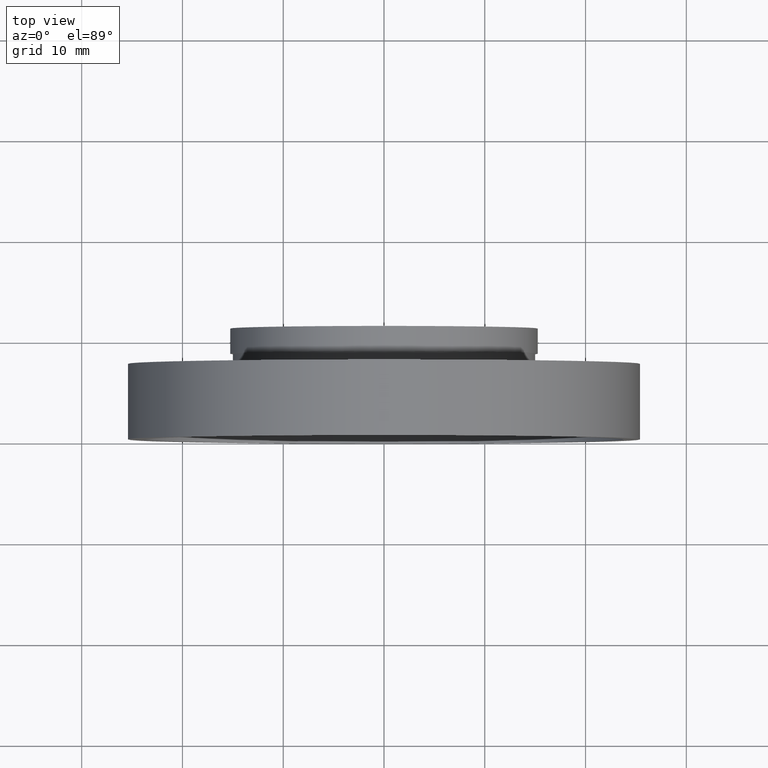
[diagram: clean part render]
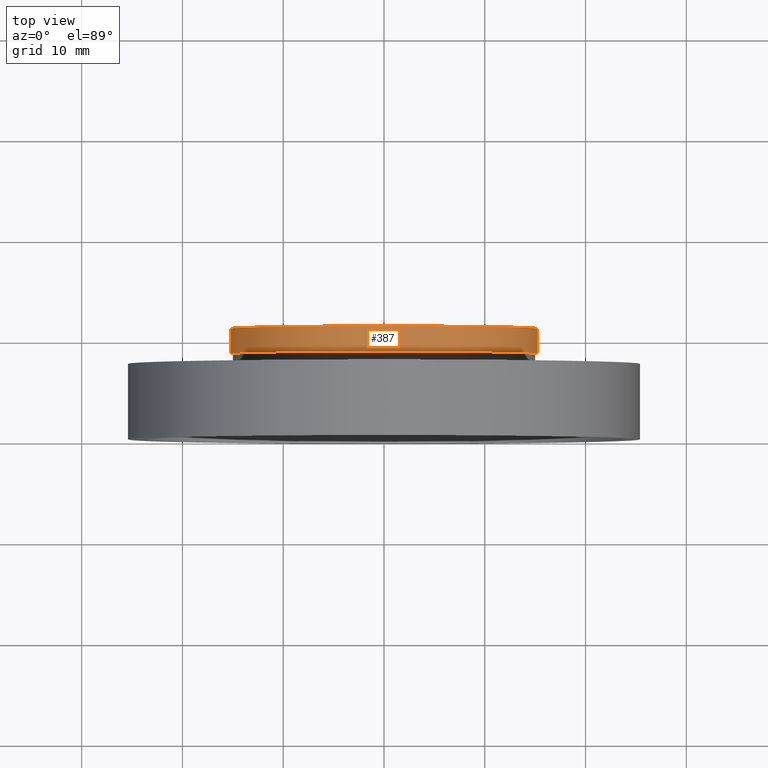
[diagram: same view with one face highlighted and labeled with its STEP entity id]
A machine part, top view. The second image highlights one B-rep face of the part: STEP entity #387.
In plain terms, the highlighted cylindrical surface (partial cylindrical patch) has radius 15.26 mm, axis along (-0, 1, -0).
Its self-contained STEP definition (entity closure, byte-faithful):
#1 = ORIENTED_EDGE ( 'NONE', *, *, #409, .F. ) ;
#15 = CARTESIAN_POINT ( 'NONE',  ( 15.26000000000000000, 16.88601823708208000, 1.868811015498860900E-015 ) ) ;
#20 = CARTESIAN_POINT ( 'NONE',  ( -15.26000000000000000, 16.88601823708207300, 0.0000000000000000000 ) ) ;
#22 = DIRECTION ( 'NONE',  ( -1.000000000000000000, -2.273556325002368600E-016, 0.0000000000000000000 ) ) ;
#56 = CARTESIAN_POINT ( 'NONE',  ( 1.026991039163387900E-015, 8.499999999999996400, 0.0000000000000000000 ) ) ;
#78 = EDGE_CURVE ( 'NONE', #616, #382, #426, .T. ) ;
#104 = CARTESIAN_POINT ( 'NONE',  ( -15.25999999999999800, 8.499999999999994700, 0.0000000000000000000 ) ) ;
#108 = CARTESIAN_POINT ( 'NONE',  ( 15.26000000000000300, 8.499999999999998200, 1.868811015498861300E-015 ) ) ;
#126 = CARTESIAN_POINT ( 'NONE',  ( 7.208293393765502500E-016, 10.99999999999999600, 0.0000000000000000000 ) ) ;
#136 = CIRCLE ( 'NONE', #536, 15.26000000000000000 ) ;
#182 = DIRECTION ( 'NONE',  ( -1.000000000000000000, -1.136778162501184300E-016, 0.0000000000000000000 ) ) ;
#188 = FACE_OUTER_BOUND ( 'NONE', #308, .T. ) ;
#196 = LINE ( 'NONE', #15, #469 ) ;
#197 = DIRECTION ( 'NONE',  ( -1.000000000000000000, -1.136778162501184300E-016, 0.0000000000000000000 ) ) ;
#198 = ORIENTED_EDGE ( 'NONE', *, *, #78, .F. ) ;
#220 = CARTESIAN_POINT ( 'NONE',  ( 15.26000000000000000, 10.99999999999999800, 1.868811015498860900E-015 ) ) ;
#242 = EDGE_CURVE ( 'NONE', #616, #261, #452, .T. ) ;
#258 = AXIS2_PLACEMENT_3D ( 'NONE', #56, #433, #197 ) ;
#261 = VERTEX_POINT ( 'NONE', #108 ) ;
#282 = VERTEX_POINT ( 'NONE', #220 ) ;
#297 = VECTOR ( 'NONE', #315, 1000.000000000000000 ) ;
#308 = EDGE_LOOP ( 'NONE', ( #324, #460, #1, #198 ) ) ;
#315 = DIRECTION ( 'NONE',  ( -1.224646799147351000E-016, 1.000000000000000000, -0.0000000000000000000 ) ) ;
#324 = ORIENTED_EDGE ( 'NONE', *, *, #242, .T. ) ;
#335 = AXIS2_PLACEMENT_3D ( 'NONE', #501, #415, #22 ) ;
#336 = EDGE_CURVE ( 'NONE', #261, #282, #196, .T. ) ;
#373 = CARTESIAN_POINT ( 'NONE',  ( -15.26000000000000000, 10.99999999999999500, 0.0000000000000000000 ) ) ;
#382 = VERTEX_POINT ( 'NONE', #373 ) ;
#387 = ADVANCED_FACE ( 'NONE', ( #188 ), #424, .T. ) ;
#409 = EDGE_CURVE ( 'NONE', #382, #282, #136, .T. ) ;
#415 = DIRECTION ( 'NONE',  ( -1.224646799147351000E-016, 1.000000000000000000, -0.0000000000000000000 ) ) ;
#424 = CYLINDRICAL_SURFACE ( 'NONE', #335, 15.26000000000000000 ) ;
#426 = LINE ( 'NONE', #20, #297 ) ;
#433 = DIRECTION ( 'NONE',  ( -1.224646799147351000E-016, 1.000000000000000000, -0.0000000000000000000 ) ) ;
#452 = CIRCLE ( 'NONE', #258, 15.26000000000000000 ) ;
#460 = ORIENTED_EDGE ( 'NONE', *, *, #336, .T. ) ;
#469 = VECTOR ( 'NONE', #552, 1000.000000000000000 ) ;
#501 = CARTESIAN_POINT ( 'NONE',  ( 0.0000000000000000000, 16.88601823708207700, 0.0000000000000000000 ) ) ;
#536 = AXIS2_PLACEMENT_3D ( 'NONE', #126, #556, #182 ) ;
#552 = DIRECTION ( 'NONE',  ( -1.224646799147351000E-016, 1.000000000000000000, -0.0000000000000000000 ) ) ;
#556 = DIRECTION ( 'NONE',  ( -1.224646799147351000E-016, 1.000000000000000000, -0.0000000000000000000 ) ) ;
#616 = VERTEX_POINT ( 'NONE', #104 ) ;